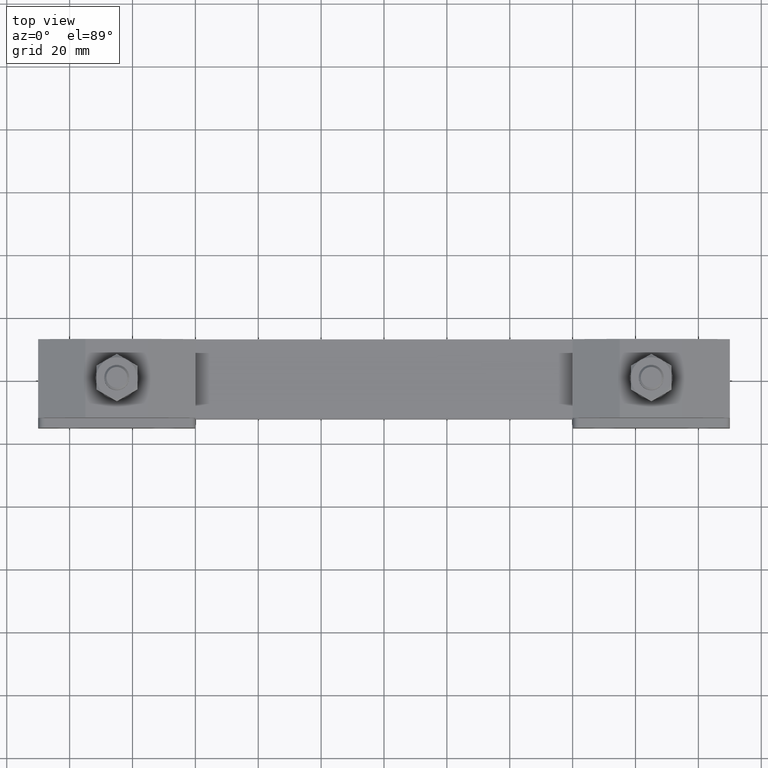
[diagram: clean part render]
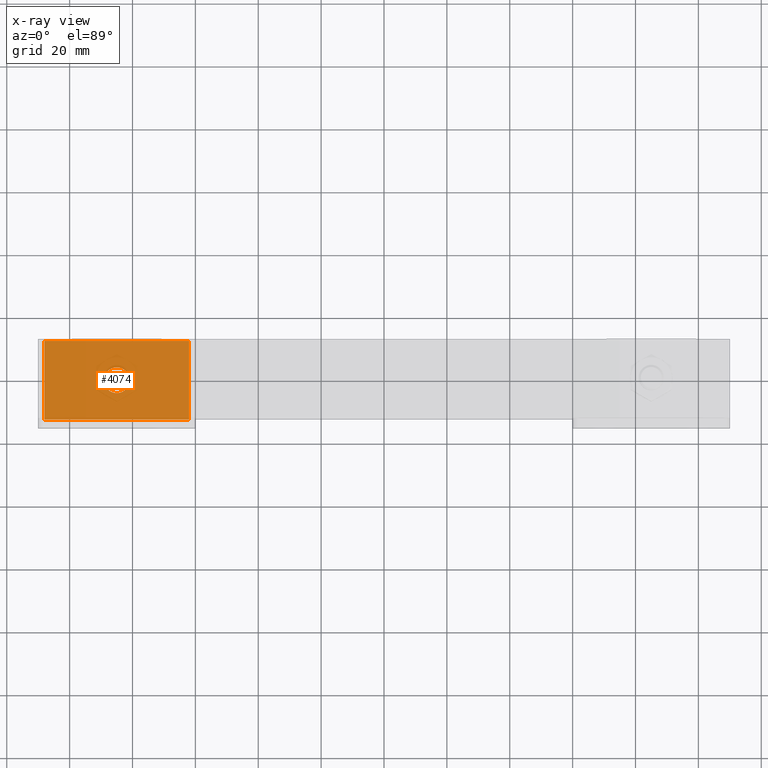
[diagram: x-ray — body ghosted, one internal face saturated and labeled with its STEP entity id]
A machine part, top view, then the same camera in x-ray: the body is ghosted and one INTERNAL B-rep face — a face not visible from any outside direction — is saturated and labeled: STEP entity #4074.
In plain terms, the highlighted planar face has unit normal (0, -0, 1).
Its self-contained STEP definition (entity closure, byte-faithful):
#372 = LINE ( 'NONE', #7135, #20600 ) ;
#524 = DIRECTION ( 'NONE',  ( 0.0000000000000000000, -0.0000000000000000000, 1.000000000000000000 ) ) ;
#673 = PLANE ( 'NONE',  #3661 ) ;
#841 = DIRECTION ( 'NONE',  ( 0.0000000000000000000, 0.0000000000000000000, 1.000000000000000000 ) ) ;
#1218 = VERTEX_POINT ( 'NONE', #3941 ) ;
#1998 = ORIENTED_EDGE ( 'NONE', *, *, #17592, .F. ) ;
#2178 = VECTOR ( 'NONE', #10748, 1000.000000000000000 ) ;
#2391 = LINE ( 'NONE', #9474, #21028 ) ;
#2413 = CARTESIAN_POINT ( 'NONE',  ( -108.0000000000000000, -12.50000000000028100, -4.000000000000000000 ) ) ;
#2529 = EDGE_CURVE ( 'NONE', #7993, #10870, #372, .T. ) ;
#2635 = EDGE_LOOP ( 'NONE', ( #21008, #14463, #16384, #19118 ) ) ;
#3064 = AXIS2_PLACEMENT_3D ( 'NONE', #19569, #19497, #9410 ) ;
#3233 = FACE_BOUND ( 'NONE', #3298, .T. ) ;
#3298 = EDGE_LOOP ( 'NONE', ( #1998, #8009 ) ) ;
#3388 = DIRECTION ( 'NONE',  ( 1.000000000000000000, 7.494005416219831900E-015, 0.0000000000000000000 ) ) ;
#3661 = AXIS2_PLACEMENT_3D ( 'NONE', #19113, #524, #17725 ) ;
#3941 = CARTESIAN_POINT ( 'NONE',  ( -62.00000000000000000, 12.50000000000028100, -4.000000000000000000 ) ) ;
#4074 = ADVANCED_FACE ( 'NONE', ( #3233, #10407 ), #673, .T. ) ;
#4620 = EDGE_CURVE ( 'NONE', #10870, #1218, #17569, .T. ) ;
#7135 = CARTESIAN_POINT ( 'NONE',  ( -110.0000000000000000, -12.50000000000030000, -4.000000000000000000 ) ) ;
#7341 = CARTESIAN_POINT ( 'NONE',  ( -85.00000000000000000, -6.566430240326120400E-017, -4.000000000000000000 ) ) ;
#7421 = CARTESIAN_POINT ( 'NONE',  ( -108.0000000000000000, 12.50000000000000000, -4.000000000000000000 ) ) ;
#7560 = DIRECTION ( 'NONE',  ( 1.000000000000000000, 7.494005416219820800E-015, 0.0000000000000000000 ) ) ;
#7993 = VERTEX_POINT ( 'NONE', #2413 ) ;
#7998 = VECTOR ( 'NONE', #21290, 1000.000000000000000 ) ;
#8009 = ORIENTED_EDGE ( 'NONE', *, *, #16119, .F. ) ;
#8822 = AXIS2_PLACEMENT_3D ( 'NONE', #7341, #841, #7560 ) ;
#9410 = DIRECTION ( 'NONE',  ( 1.000000000000000000, 7.494005416219820800E-015, 0.0000000000000000000 ) ) ;
#9474 = CARTESIAN_POINT ( 'NONE',  ( -110.0000000000000000, 12.50000000000000000, -4.000000000000000000 ) ) ;
#10401 = EDGE_CURVE ( 'NONE', #13357, #7993, #15262, .T. ) ;
#10407 = FACE_OUTER_BOUND ( 'NONE', #2635, .T. ) ;
#10748 = DIRECTION ( 'NONE',  ( -7.494005416219831900E-015, -1.000000000000000000, 0.0000000000000000000 ) ) ;
#10870 = VERTEX_POINT ( 'NONE', #11063 ) ;
#11063 = CARTESIAN_POINT ( 'NONE',  ( -62.00000000000000000, -12.50000000000000000, -4.000000000000000000 ) ) ;
#12669 = CARTESIAN_POINT ( 'NONE',  ( -62.00000000000000000, 12.50000000000028100, -4.000000000000000000 ) ) ;
#13241 = VERTEX_POINT ( 'NONE', #13903 ) ;
#13357 = VERTEX_POINT ( 'NONE', #7421 ) ;
#13903 = CARTESIAN_POINT ( 'NONE',  ( -80.90000000000000600, 3.065975790409805200E-014, -4.000000000000000000 ) ) ;
#14034 = CARTESIAN_POINT ( 'NONE',  ( -108.0000000000000000, -12.50000000000028100, -4.000000000000000000 ) ) ;
#14463 = ORIENTED_EDGE ( 'NONE', *, *, #4620, .T. ) ;
#15262 = LINE ( 'NONE', #14034, #2178 ) ;
#16119 = EDGE_CURVE ( 'NONE', #19476, #13241, #21407, .T. ) ;
#16384 = ORIENTED_EDGE ( 'NONE', *, *, #19102, .T. ) ;
#17493 = CARTESIAN_POINT ( 'NONE',  ( -89.10000000000000900, -3.028898132125412200E-014, -4.000000000000000000 ) ) ;
#17569 = LINE ( 'NONE', #12669, #7998 ) ;
#17592 = EDGE_CURVE ( 'NONE', #13241, #19476, #18925, .T. ) ;
#17725 = DIRECTION ( 'NONE',  ( 1.000000000000000000, 7.494005416219831900E-015, 0.0000000000000000000 ) ) ;
#18925 = CIRCLE ( 'NONE', #8822, 4.100000000000006800 ) ;
#19102 = EDGE_CURVE ( 'NONE', #1218, #13357, #2391, .T. ) ;
#19113 = CARTESIAN_POINT ( 'NONE',  ( -110.0000000000000000, -12.50000000000030000, -4.000000000000000000 ) ) ;
#19118 = ORIENTED_EDGE ( 'NONE', *, *, #10401, .T. ) ;
#19476 = VERTEX_POINT ( 'NONE', #17493 ) ;
#19497 = DIRECTION ( 'NONE',  ( 0.0000000000000000000, 0.0000000000000000000, 1.000000000000000000 ) ) ;
#19569 = CARTESIAN_POINT ( 'NONE',  ( -85.00000000000000000, -6.566430240326120400E-017, -4.000000000000000000 ) ) ;
#19704 = DIRECTION ( 'NONE',  ( -1.000000000000000000, -7.494005416219831900E-015, 0.0000000000000000000 ) ) ;
#20600 = VECTOR ( 'NONE', #3388, 1000.000000000000000 ) ;
#21008 = ORIENTED_EDGE ( 'NONE', *, *, #2529, .T. ) ;
#21028 = VECTOR ( 'NONE', #19704, 1000.000000000000000 ) ;
#21290 = DIRECTION ( 'NONE',  ( 7.494005416219831900E-015, 1.000000000000000000, 0.0000000000000000000 ) ) ;
#21407 = CIRCLE ( 'NONE', #3064, 4.100000000000006800 ) ;